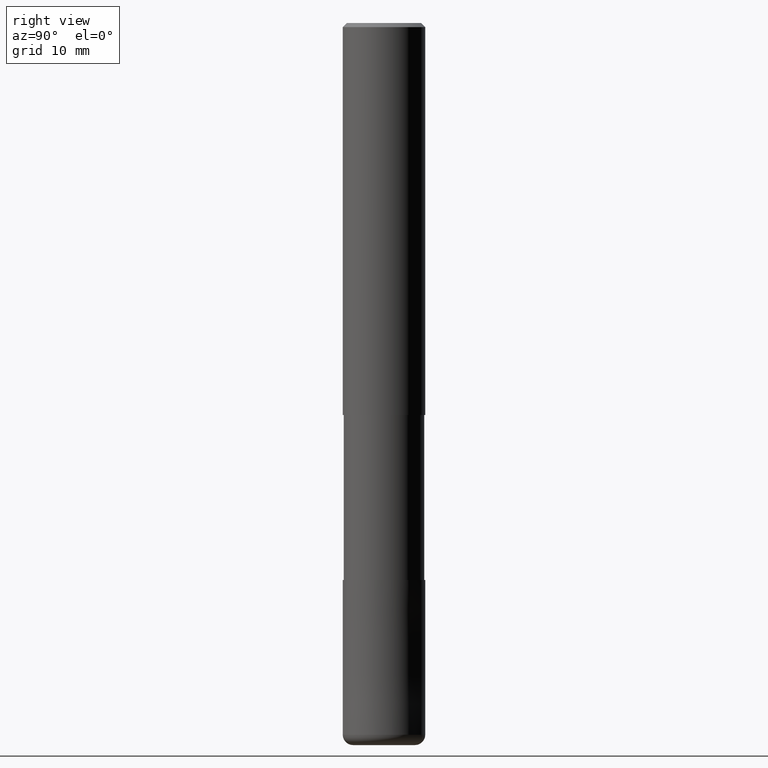
[diagram: clean part render]
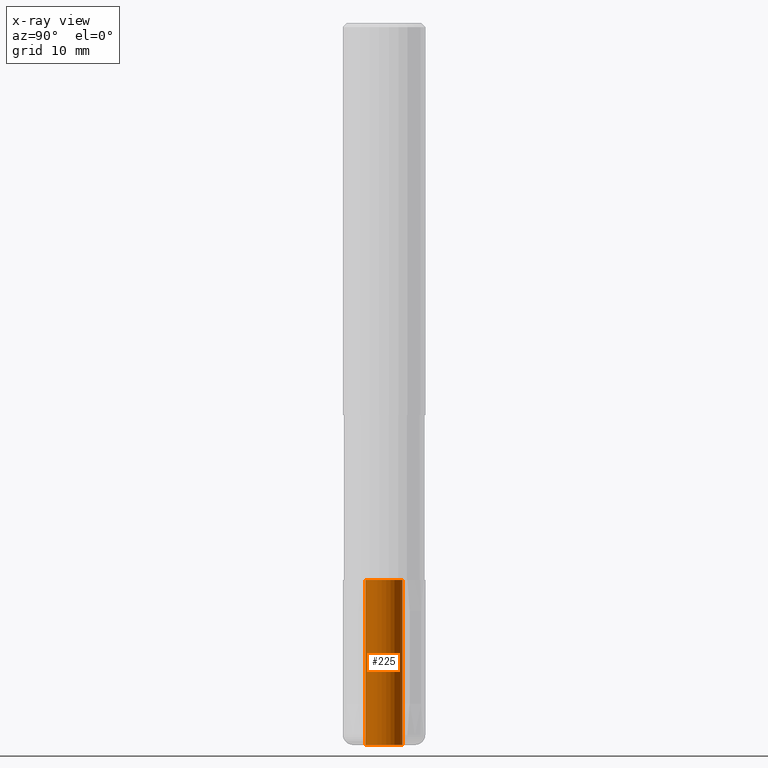
[diagram: x-ray — body ghosted, one internal face saturated and labeled with its STEP entity id]
A machine part, right view, then the same camera in x-ray: the body is ghosted and one INTERNAL B-rep face — a face not visible from any outside direction — is saturated and labeled: STEP entity #225.
In plain terms, the highlighted cylindrical surface (edge-blend (fillet) strip) has radius 1.8 mm, axis along (-0, -0, 1).
Its self-contained STEP definition (entity closure, byte-faithful):
#175=EDGE_CURVE('',#187,#237,#371,.T.);
#187=VERTEX_POINT('',#384);
#191=EDGE_CURVE('',#209,#187,#388,.T.);
#193=VERTEX_POINT('',#390);
#205=EDGE_CURVE('',#193,#209,#402,.T.);
#209=VERTEX_POINT('',#407);
#221=EDGE_CURVE('',#193,#237,#420,.T.);
#225=ADVANCED_FACE('',(#425),#426,.F.);
#237=VERTEX_POINT('',#443);
#371=LINE('',#590,#591);
#384=CARTESIAN_POINT('',(2.20429143688028E-016,-1.8,-70.0));
#388=CIRCLE('',#611,1.8);
#390=CARTESIAN_POINT('',(0.0,1.8,-54.0));
#402=LINE('',#628,#629);
#407=CARTESIAN_POINT('',(0.0,1.8,-70.0));
#420=CIRCLE('',#651,1.8);
#425=FACE_OUTER_BOUND('',#656,.T.);
#426=CYLINDRICAL_SURFACE('',#657,1.8);
#443=CARTESIAN_POINT('',(2.20429143688028E-016,-1.8,-54.0));
#590=CARTESIAN_POINT('',(2.20429143688028E-016,-1.8,-62.0));
#591=VECTOR('',#843,1.0);
#611=AXIS2_PLACEMENT_3D('',#857,#858,#859);
#628=CARTESIAN_POINT('',(-2.20429143688028E-016,1.8,-62.0));
#629=VECTOR('',#866,1.0);
#651=AXIS2_PLACEMENT_3D('',#887,#888,#889);
#656=EDGE_LOOP('',(#899,#900,#901,#902));
#657=AXIS2_PLACEMENT_3D('',#903,#904,#905);
#843=DIRECTION('',(0.0,-0.0,1.0));
#857=CARTESIAN_POINT('',(0.0,0.0,-70.0));
#858=DIRECTION('',(0.0,0.0,-1.0));
#859=DIRECTION('',(0.0,1.0,0.0));
#866=DIRECTION('',(0.0,-0.0,-1.0));
#887=CARTESIAN_POINT('',(0.0,0.0,-54.0));
#888=DIRECTION('',(0.0,0.0,-1.0));
#889=DIRECTION('',(0.0,1.0,0.0));
#899=ORIENTED_EDGE('',*,*,#205,.T.);
#900=ORIENTED_EDGE('',*,*,#191,.T.);
#901=ORIENTED_EDGE('',*,*,#175,.T.);
#902=ORIENTED_EDGE('',*,*,#221,.F.);
#903=CARTESIAN_POINT('',(0.0,0.0,-62.0));
#904=DIRECTION('',(-0.0,-0.0,1.0));
#905=DIRECTION('',(0.0,1.0,0.0));